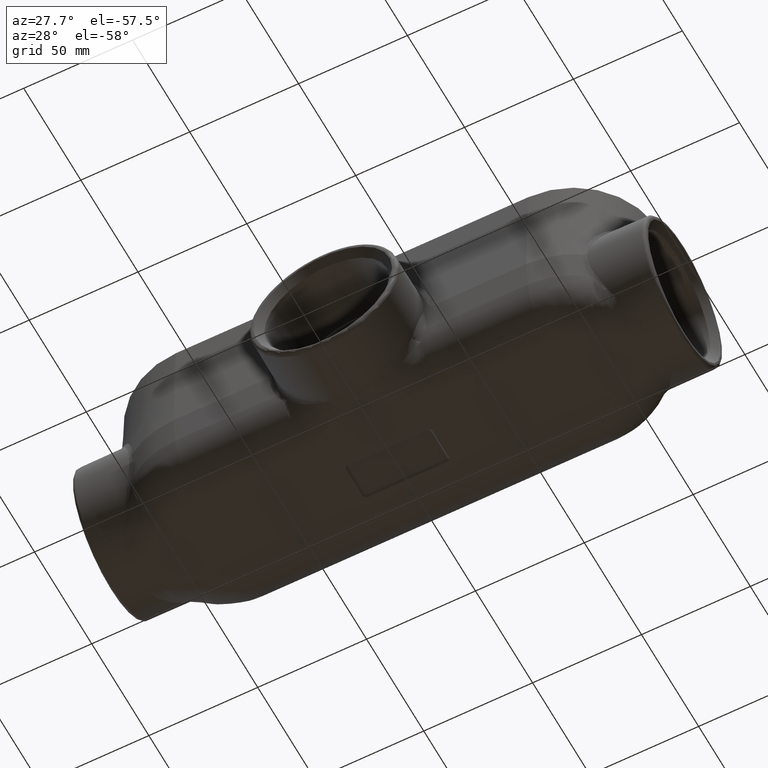
[diagram: clean part render]
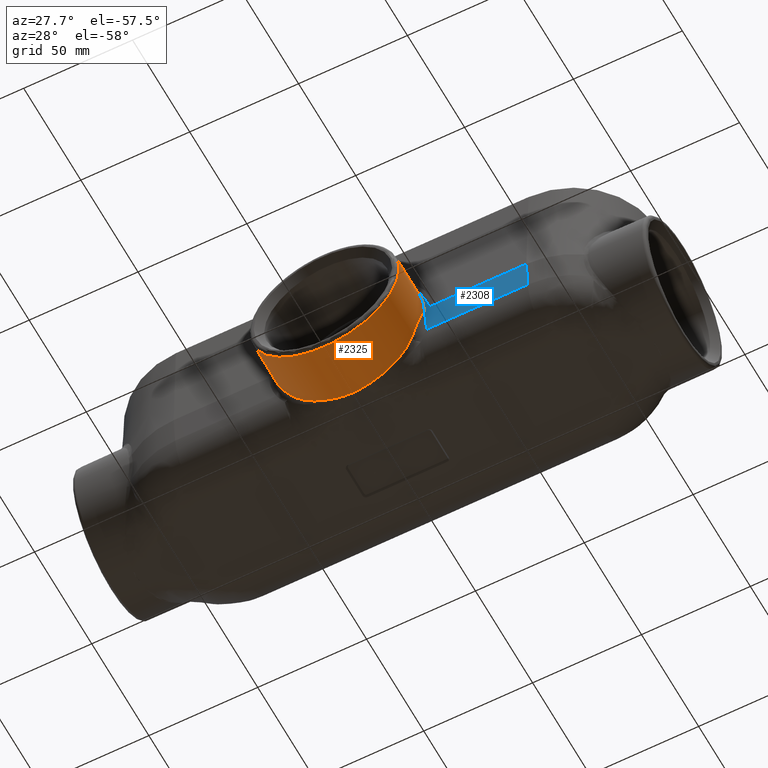
[diagram: same view with the hole feature highlighted: cylindrical wall and planar end face, labeled with their STEP entity ids]
A machine part, auxiliary view. The highlighted faces form one hole feature of diameter 68.2626 mm: the cylindrical wall (entity #2325, orange) and its adjacent planar end face (entity #2308, blue) — they share a circular edge in the B-rep.
Wall:
#62=CYLINDRICAL_SURFACE('',#2567,1.34375);
#128=ELLIPSE('',#2510,1.34888290669887,1.34375);
#131=ELLIPSE('',#2569,1.3447284909267,1.34375);
#132=ELLIPSE('',#2570,1.34988001280164,1.34375);
#162=FACE_BOUND('',#377,.T.);
#215=FACE_OUTER_BOUND('',#376,.T.);
#376=EDGE_LOOP('',(#1750));
#377=EDGE_LOOP('',(#1751,#1752,#1753,#1754,#1755,#1756,#1757,#1758));
#560=B_SPLINE_CURVE_WITH_KNOTS('',3,(#6206,#6207,#6208,#6209,#6210,#6211,
#6212,#6213,#6214,#6215,#6216,#6217,#6218,#6219,#6220,#6221,#6222,#6223,
#6224,#6225,#6226,#6227,#6228,#6229,#6230,#6231,#6232,#6233,#6234,#6235,
#6236,#6237,#6238,#6239,#6240,#6241,#6242,#6243,#6244,#6245,#6246,#6247,
#6248,#6249,#6250,#6251,#6252,#6253,#6254,#6255,#6256,#6257,#6258,#6259,
#6260),.UNSPECIFIED.,.F.,.F.,(4,3,3,3,3,3,3,3,3,3,3,3,3,3,3,3,3,3,4),(0.,
0.0312500000000001,0.0625000000000003,0.125,0.233533409718275,0.25,0.347367619025291,
0.375,0.4375,0.5,0.594659950686659,0.625,0.68280464052731,0.6875,0.749999999999999,
0.844536304348376,0.875,0.954119808201592,1.),.UNSPECIFIED.);
#561=B_SPLINE_CURVE_WITH_KNOTS('',3,(#6261,#6262,#6263,#6264,#6265,#6266,
#6267,#6268,#6269,#6270,#6271,#6272,#6273,#6274,#6275,#6276,#6277,#6278,
#6279,#6280,#6281,#6282,#6283,#6284,#6285,#6286,#6287,#6288,#6289,#6290,
#6291,#6292,#6293,#6294,#6295,#6296,#6297,#6298,#6299,#6300,#6301,#6302,
#6303,#6304,#6305,#6306,#6307,#6308,#6309,#6310,#6311,#6312),
 .UNSPECIFIED.,.F.,.F.,(4,3,3,3,3,3,3,3,3,3,3,3,3,3,3,3,3,4),(0.,0.12618563218385,
0.249999999999997,0.252066230735854,0.314887261897154,0.374999999999995,
0.37761548038576,0.437499999999994,0.440285716294809,0.499999999999993,
0.503001374161011,0.628543282519174,0.749999999999996,0.754427133870119,
0.8174317185789,0.874999999999998,0.880374945876926,1.),.UNSPECIFIED.);
#562=B_SPLINE_CURVE_WITH_KNOTS('',3,(#6320,#6321,#6322,#6323,#6324,#6325,
#6326,#6327,#6328,#6329,#6330,#6331,#6332),.UNSPECIFIED.,.F.,.F.,(4,3,3,
3,4),(0.,0.411724005462899,0.5,0.94958389478215,1.),.UNSPECIFIED.);
#563=B_SPLINE_CURVE_WITH_KNOTS('',3,(#6333,#6334,#6335,#6336,#6337,#6338,
#6339,#6340,#6341,#6342,#6343,#6344,#6345,#6346,#6347,#6348,#6349,#6350,
#6351,#6352,#6353,#6354,#6355,#6356,#6357,#6358,#6359,#6360),
 .UNSPECIFIED.,.F.,.F.,(4,2,2,2,2,2,2,2,2,2,2,2,2,4),(0.,0.0312499999999996,
0.0624999999999993,0.125,0.25,0.312500000000001,0.375000000000001,0.437500000000001,
0.500000000000001,0.625000000000001,0.750000000000001,0.875000000000001,
0.9375,1.),.UNSPECIFIED.);
#650=LINE('',#6314,#774);
#774=VECTOR('',#3008,0.393700787401575);
#900=CIRCLE('',#2568,1.34375);
#978=VERTEX_POINT('',#3547);
#1049=VERTEX_POINT('',#3969);
#1050=VERTEX_POINT('',#3984);
#1116=VERTEX_POINT('',#6203);
#1117=VERTEX_POINT('',#6205);
#1118=VERTEX_POINT('',#6313);
#1119=VERTEX_POINT('',#6315);
#1120=VERTEX_POINT('',#6317);
#1121=VERTEX_POINT('',#6319);
#1282=EDGE_CURVE('',#1050,#1049,#128,.T.);
#1369=EDGE_CURVE('',#1116,#1116,#900,.F.);
#1370=EDGE_CURVE('',#978,#1117,#560,.F.);
#1371=EDGE_CURVE('',#1117,#1050,#561,.T.);
#1372=EDGE_CURVE('',#1049,#1118,#650,.T.);
#1373=EDGE_CURVE('',#1118,#1119,#131,.T.);
#1374=EDGE_CURVE('',#1119,#1120,#132,.F.);
#1375=EDGE_CURVE('',#1120,#1121,#562,.T.);
#1376=EDGE_CURVE('',#1121,#978,#563,.T.);
#1750=ORIENTED_EDGE('',*,*,#1369,.T.);
#1751=ORIENTED_EDGE('',*,*,#1370,.T.);
#1752=ORIENTED_EDGE('',*,*,#1371,.T.);
#1753=ORIENTED_EDGE('',*,*,#1282,.T.);
#1754=ORIENTED_EDGE('',*,*,#1372,.T.);
#1755=ORIENTED_EDGE('',*,*,#1373,.T.);
#1756=ORIENTED_EDGE('',*,*,#1374,.T.);
#1757=ORIENTED_EDGE('',*,*,#1375,.T.);
#1758=ORIENTED_EDGE('',*,*,#1376,.T.);
#2325=ADVANCED_FACE('',(#215,#162),#62,.T.);
#2510=AXIS2_PLACEMENT_3D('',#3985,#2865,#2866);
#2567=AXIS2_PLACEMENT_3D('',#6202,#3004,#3005);
#2568=AXIS2_PLACEMENT_3D('',#6204,#3006,#3007);
#2569=AXIS2_PLACEMENT_3D('',#6316,#3009,#3010);
#2570=AXIS2_PLACEMENT_3D('',#6318,#3011,#3012);
#2865=DIRECTION('center_axis',(3.06454760320682E-12,-0.996194698091746,
-0.0871557427476582));
#2866=DIRECTION('ref_axis',(3.50144984692255E-11,0.0871557427476582,-0.996194698091746));
#3004=DIRECTION('center_axis',(-1.17145334231628E-15,1.,0.));
#3005=DIRECTION('ref_axis',(0.,0.,1.));
#3006=DIRECTION('center_axis',(1.17145334231628E-15,-1.,0.));
#3007=DIRECTION('ref_axis',(1.,1.17145334231628E-15,0.));
#3008=DIRECTION('',(-0.736922145658352,-0.0589153321019896,0.673405327333845));
#3009=DIRECTION('center_axis',(3.35986125615489E-12,-0.999272350564962,
0.038141439359003));
#3010=DIRECTION('ref_axis',(8.79946427139543E-11,0.038141439359003,0.999272350564962));
#3011=DIRECTION('center_axis',(-3.34703908041061E-12,0.995458846161507,
0.0951928862825407));
#3012=DIRECTION('ref_axis',(3.49885716841139E-11,0.0951928862825407,-0.995458846161507));
#3547=CARTESIAN_POINT('',(1.9375,-2.17430246952019,-3.4375));
#3969=CARTESIAN_POINT('',(2.8476944584743,-2.37835135052629,-1.10521061774841));
#3984=CARTESIAN_POINT('',(3.27998871132144,-2.28677284491163,-2.15195772685654));
#3985=CARTESIAN_POINT('Origin',(1.9375,-2.29186536113315,-2.09375));
#6202=CARTESIAN_POINT('Origin',(1.9375,-3.22375963888646,-2.09375));
#6203=CARTESIAN_POINT('',(3.28125,-3.16175963888645,-2.09375));
#6204=CARTESIAN_POINT('Origin',(1.9375,-3.16175963888646,-2.09375));
#6205=CARTESIAN_POINT('',(3.06122877783149,-2.3141579399722,-2.83056591756242));
#6206=CARTESIAN_POINT('Ctrl Pts',(3.06122877783149,-2.3141579399722,-2.83056591756242));
#6207=CARTESIAN_POINT('Ctrl Pts',(3.05388511961875,-2.30978191189631,-2.84176583856238));
#6208=CARTESIAN_POINT('Ctrl Pts',(3.04629032209819,-2.3060287378006,-2.85298206169752));
#6209=CARTESIAN_POINT('Ctrl Pts',(3.0384874379417,-2.3025403999897,-2.86413349151223));
#6210=CARTESIAN_POINT('Ctrl Pts',(3.0306845537852,-2.2990520621788,-2.87528492132695));
#6211=CARTESIAN_POINT('Ctrl Pts',(3.0226700325943,-2.29585640090192,-2.88637772058892));
#6212=CARTESIAN_POINT('Ctrl Pts',(3.01445596696609,-2.29284105113692,-2.89738543209352));
#6213=CARTESIAN_POINT('Ctrl Pts',(2.99802783570967,-2.28681035160692,-2.9194008551027));
#6214=CARTESIAN_POINT('Ctrl Pts',(2.98085837061632,-2.28151554115115,-2.94099357586269));
#6215=CARTESIAN_POINT('Ctrl Pts',(2.96311331361109,-2.27663756268638,-2.96195584739085));
#6216=CARTESIAN_POINT('Ctrl Pts',(2.93229840893234,-2.26816678452137,-2.99835755626112));
#6217=CARTESIAN_POINT('Ctrl Pts',(2.89963694079648,-2.26090972684459,-3.03301745569176));
#6218=CARTESIAN_POINT('Ctrl Pts',(2.86519291264847,-2.25430338514818,-3.06588678169371));
#6219=CARTESIAN_POINT('Ctrl Pts',(2.85996709600235,-2.25330107699018,-3.07087368596139));
#6220=CARTESIAN_POINT('Ctrl Pts',(2.85470017455916,-2.25231374745681,-3.07581930814195));
#6221=CARTESIAN_POINT('Ctrl Pts',(2.84939229798718,-2.25133943032598,-3.08072340357866));
#6222=CARTESIAN_POINT('Ctrl Pts',(2.81800660762558,-2.24557825344716,-3.10972151964134));
#6223=CARTESIAN_POINT('Ctrl Pts',(2.78518898802633,-2.24030597690503,-3.13727330078797));
#6224=CARTESIAN_POINT('Ctrl Pts',(2.75092125639678,-2.23538825089777,-3.16333399489796));
#6225=CARTESIAN_POINT('Ctrl Pts',(2.74119626748357,-2.23399262800053,-3.17072987286356));
#6226=CARTESIAN_POINT('Ctrl Pts',(2.73135433069218,-2.23262556033315,-3.17800538035312));
#6227=CARTESIAN_POINT('Ctrl Pts',(2.72139469759801,-2.23128397711847,-3.18515879856162));
#6228=CARTESIAN_POINT('Ctrl Pts',(2.69886760994111,-2.22824953173376,-3.20133867963812));
#6229=CARTESIAN_POINT('Ctrl Pts',(2.67567324047738,-2.22534225543908,-3.21693493100767));
#6230=CARTESIAN_POINT('Ctrl Pts',(2.65201941071155,-2.22256953298465,-3.23178606015645));
#6231=CARTESIAN_POINT('Ctrl Pts',(2.62836558094572,-2.21979681053022,-3.24663718930523));
#6232=CARTESIAN_POINT('Ctrl Pts',(2.60431226865769,-2.21716454658544,-3.26071194362149));
#6233=CARTESIAN_POINT('Ctrl Pts',(2.57986482058485,-2.21465443643873,-3.27401755431766));
#6234=CARTESIAN_POINT('Ctrl Pts',(2.54283771292102,-2.21085272599545,-3.29416968955533));
#6235=CARTESIAN_POINT('Ctrl Pts',(2.50490803972871,-2.2073293969197,-3.31255943824229));
#6236=CARTESIAN_POINT('Ctrl Pts',(2.46607262541782,-2.20404593122213,-3.32917504513989));
#6237=CARTESIAN_POINT('Ctrl Pts',(2.45362524532995,-2.20299352721748,-3.334500616609));
#6238=CARTESIAN_POINT('Ctrl Pts',(2.44108466322943,-2.2019657645325,-3.33964356044795));
#6239=CARTESIAN_POINT('Ctrl Pts',(2.42845041209292,-2.20096137489159,-3.34460241150417));
#6240=CARTESIAN_POINT('Ctrl Pts',(2.40437931261199,-2.19904778597344,-3.35405014178873));
#6241=CARTESIAN_POINT('Ctrl Pts',(2.37994210345153,-2.19721859770372,-3.36283503280058));
#6242=CARTESIAN_POINT('Ctrl Pts',(2.3553821221487,-2.19548449631944,-3.37087121370232));
#6243=CARTESIAN_POINT('Ctrl Pts',(2.35338716223186,-2.19534363860824,-3.37152397717904));
#6244=CARTESIAN_POINT('Ctrl Pts',(2.35139140144357,-2.19520340828027,-3.37217182762898));
#6245=CARTESIAN_POINT('Ctrl Pts',(2.34939497480667,-2.19506381106275,-3.37281473340054));
#6246=CARTESIAN_POINT('Ctrl Pts',(2.32282051005441,-2.19320563041739,-3.38137246171859));
#6247=CARTESIAN_POINT('Ctrl Pts',(2.29606033641171,-2.19145409322369,-3.38907681668337));
#6248=CARTESIAN_POINT('Ctrl Pts',(2.26911714327677,-2.18980039729282,-3.39593820943247));
#6249=CARTESIAN_POINT('Ctrl Pts',(2.22836338477562,-2.1872990484637,-3.40631662084339));
#6250=CARTESIAN_POINT('Ctrl Pts',(2.18719170272601,-2.18502068865859,-3.41476869341384));
#6251=CARTESIAN_POINT('Ctrl Pts',(2.14560123522607,-2.1829451626391,-3.42128830016214));
#6252=CARTESIAN_POINT('Ctrl Pts',(2.13219898354445,-2.18227633817626,-3.42338920009807));
#6253=CARTESIAN_POINT('Ctrl Pts',(2.11875317675951,-2.18162857613158,-3.42528903295629));
#6254=CARTESIAN_POINT('Ctrl Pts',(2.10526367447439,-2.18100120207046,-3.42698644265631));
#6255=CARTESIAN_POINT('Ctrl Pts',(2.07022896149212,-2.17937179650017,-3.43139492715014));
#6256=CARTESIAN_POINT('Ctrl Pts',(2.0348367271723,-2.17788055579275,-3.43444121007604));
#6257=CARTESIAN_POINT('Ctrl Pts',(1.99933148878022,-2.17652481350827,-3.43607668508646));
#6258=CARTESIAN_POINT('Ctrl Pts',(1.97874262254933,-2.17573864228952,-3.43702506841632));
#6259=CARTESIAN_POINT('Ctrl Pts',(1.95811595847627,-2.17499803427293,-3.4375));
#6260=CARTESIAN_POINT('Ctrl Pts',(1.9375,-2.17430246952019,-3.4375));
#6261=CARTESIAN_POINT('Ctrl Pts',(3.06122877783149,-2.3141579399722,-2.83056591756242));
#6262=CARTESIAN_POINT('Ctrl Pts',(3.07759467085648,-2.32391024669586,-2.80560605373654));
#6263=CARTESIAN_POINT('Ctrl Pts',(3.09318887425895,-2.3325754124915,-2.78001202575646));
#6264=CARTESIAN_POINT('Ctrl Pts',(3.10799448362863,-2.34006957295285,-2.75375509566126));
#6265=CARTESIAN_POINT('Ctrl Pts',(3.12252186786814,-2.34742290410297,-2.72799158246038));
#6266=CARTESIAN_POINT('Ctrl Pts',(3.13629003550759,-2.35364887817192,-2.70158986785307));
#6267=CARTESIAN_POINT('Ctrl Pts',(3.14926801407607,-2.35863219622794,-2.67451018360899));
#6268=CARTESIAN_POINT('Ctrl Pts',(3.1494845923188,-2.3587153585064,-2.6740582742152));
#6269=CARTESIAN_POINT('Ctrl Pts',(3.14970094976637,-2.35879817351636,-2.67360617745969));
#6270=CARTESIAN_POINT('Ctrl Pts',(3.1499170863094,-2.35888064075888,-2.67315389308958));
#6271=CARTESIAN_POINT('Ctrl Pts',(3.15648843396657,-2.36138794893207,-2.65940278097245));
#6272=CARTESIAN_POINT('Ctrl Pts',(3.16285560392567,-2.36357383291906,-2.64547827336303));
#6273=CARTESIAN_POINT('Ctrl Pts',(3.16901481752705,-2.36542022514907,-2.63137004865975));
#6274=CARTESIAN_POINT('Ctrl Pts',(3.17490849974293,-2.36718701710562,-2.61787004713149));
#6275=CARTESIAN_POINT('Ctrl Pts',(3.1806117732098,-2.36864296383259,-2.60420182447925));
#6276=CARTESIAN_POINT('Ctrl Pts',(3.18611609669257,-2.36976614521579,-2.59036066542309));
#6277=CARTESIAN_POINT('Ctrl Pts',(3.18635558753196,-2.36981501437348,-2.58975844231414));
#6278=CARTESIAN_POINT('Ctrl Pts',(3.18659471026496,-2.3698632525094,-2.58915587020912));
#6279=CARTESIAN_POINT('Ctrl Pts',(3.18683346206463,-2.36991085721016,-2.58855295378013));
#6280=CARTESIAN_POINT('Ctrl Pts',(3.19229996715025,-2.37100082318814,-2.57474846841154));
#6281=CARTESIAN_POINT('Ctrl Pts',(3.19757136426078,-2.37175774377912,-2.5607632134039));
#6282=CARTESIAN_POINT('Ctrl Pts',(3.20257332491406,-2.37216224381504,-2.54679877953846));
#6283=CARTESIAN_POINT('Ctrl Pts',(3.2028060068056,-2.37218106040317,-2.54614918008909));
#6284=CARTESIAN_POINT('Ctrl Pts',(3.20303815009673,-2.37219912285823,-2.54549950614383));
#6285=CARTESIAN_POINT('Ctrl Pts',(3.20326974843681,-2.37221642903525,-2.54484977438149));
#6286=CARTESIAN_POINT('Ctrl Pts',(3.20823426295359,-2.37258740219074,-2.53092220147651));
#6287=CARTESIAN_POINT('Ctrl Pts',(3.21294807793565,-2.37261045901993,-2.51696803598856));
#6288=CARTESIAN_POINT('Ctrl Pts',(3.21741726723186,-2.37228212153228,-2.50298842934004));
#6289=CARTESIAN_POINT('Ctrl Pts',(3.21764189873444,-2.37226561855191,-2.50228578287805));
#6290=CARTESIAN_POINT('Ctrl Pts',(3.21786591845671,-2.3722482270621,-2.50158305508043));
#6291=CARTESIAN_POINT('Ctrl Pts',(3.21808932818689,-2.3722299468866,-2.50088024333714));
#6292=CARTESIAN_POINT('Ctrl Pts',(3.22743414238446,-2.37146532108727,-2.47148293306022));
#6293=CARTESIAN_POINT('Ctrl Pts',(3.23571107133668,-2.36914484768759,-2.44193882722077));
#6294=CARTESIAN_POINT('Ctrl Pts',(3.24293638961828,-2.36521875747544,-2.41234048223344));
#6295=CARTESIAN_POINT('Ctrl Pts',(3.24992659275215,-2.36142042402698,-2.38370528087287));
#6296=CARTESIAN_POINT('Ctrl Pts',(3.25593261905823,-2.35611914964186,-2.35501911722033));
#6297=CARTESIAN_POINT('Ctrl Pts',(3.26098827267396,-2.34920036593404,-2.32622273760643));
#6298=CARTESIAN_POINT('Ctrl Pts',(3.26117255276832,-2.34894817418764,-2.3251731009114));
#6299=CARTESIAN_POINT('Ctrl Pts',(3.26135559583045,-2.34869379073042,-2.3241231753734));
#6300=CARTESIAN_POINT('Ctrl Pts',(3.26153740251246,-2.34843720870792,-2.32307295861124));
#6301=CARTESIAN_POINT('Ctrl Pts',(3.2641247772865,-2.34478567156313,-2.3081268393171));
#6302=CARTESIAN_POINT('Ctrl Pts',(3.26646169773176,-2.34068873422647,-2.29312163616741));
#6303=CARTESIAN_POINT('Ctrl Pts',(3.26852677172135,-2.33617773320197,-2.27822708655137));
#6304=CARTESIAN_POINT('Ctrl Pts',(3.27041366235221,-2.332055960514,-2.26461770196611));
#6305=CARTESIAN_POINT('Ctrl Pts',(3.27207358921988,-2.32758852401206,-2.25110078641867));
#6306=CARTESIAN_POINT('Ctrl Pts',(3.27351728468906,-2.32278889822588,-2.23770105910826));
#6307=CARTESIAN_POINT('Ctrl Pts',(3.27365207740508,-2.3223407742209,-2.236449974183));
#6308=CARTESIAN_POINT('Ctrl Pts',(3.27378499601704,-2.32188971891125,-2.23519981344905));
#6309=CARTESIAN_POINT('Ctrl Pts',(3.2739160486635,-2.32143574189371,-2.23395059691267));
#6310=CARTESIAN_POINT('Ctrl Pts',(3.27683276267032,-2.31133200754228,-2.20614797355648));
#6311=CARTESIAN_POINT('Ctrl Pts',(3.27882446607749,-2.29978017218533,-2.17881344344026));
#6312=CARTESIAN_POINT('Ctrl Pts',(3.27998871765521,-2.2867728449233,-2.15195772713218));
#6313=CARTESIAN_POINT('',(2.84021857967472,-2.37894903010974,-1.09837910007874));
#6314=CARTESIAN_POINT('',(2.8476944584743,-2.37835135052629,-1.10521061774841));
#6315=CARTESIAN_POINT('',(0.593753565624418,-2.41705603257365,-2.09674923406818));
#6316=CARTESIAN_POINT('Origin',(1.9375,-2.4169415541705,-2.09375));
#6317=CARTESIAN_POINT('',(0.69371722982847,-2.36870739035087,-2.6023446157053));
#6318=CARTESIAN_POINT('Origin',(1.9375,-2.41734284082607,-2.09375));
#6319=CARTESIAN_POINT('',(0.813771222168913,-2.31415793997952,-2.83056591756303));
#6320=CARTESIAN_POINT('Ctrl Pts',(0.69371722982847,-2.36870739035087,-2.6023446157053));
#6321=CARTESIAN_POINT('Ctrl Pts',(0.707516903728242,-2.36548021334426,-2.63609211538483));
#6322=CARTESIAN_POINT('Ctrl Pts',(0.722475835028014,-2.36030536209958,-2.66876510887888));
#6323=CARTESIAN_POINT('Ctrl Pts',(0.738515689873242,-2.35343598495713,-2.70046301829601));
#6324=CARTESIAN_POINT('Ctrl Pts',(0.741954726994969,-2.35196315099299,-2.70725923236518));
#6325=CARTESIAN_POINT('Ctrl Pts',(0.745443644229664,-2.35041241996817,-2.71401060417646));
#6326=CARTESIAN_POINT('Ctrl Pts',(0.748981974376567,-2.3487862869621,-2.72071807356369));
#6327=CARTESIAN_POINT('Ctrl Pts',(0.767002459524445,-2.34050449739816,-2.75487877860086));
#6328=CARTESIAN_POINT('Ctrl Pts',(0.786299449534828,-2.33026214329392,-2.7878996022776));
#6329=CARTESIAN_POINT('Ctrl Pts',(0.806821055288287,-2.3182613003445,-2.81985549267004));
#6330=CARTESIAN_POINT('Ctrl Pts',(0.809122337533744,-2.31691553202881,-2.82343900967555));
#6331=CARTESIAN_POINT('Ctrl Pts',(0.811439071395945,-2.31554765025255,-2.8270091201658));
#6332=CARTESIAN_POINT('Ctrl Pts',(0.813771222168913,-2.31415793997952,-2.83056591756302));
#6333=CARTESIAN_POINT('Ctrl Pts',(0.813771222168913,-2.31415793997952,-2.83056591756303));
#6334=CARTESIAN_POINT('Ctrl Pts',(0.821110375081262,-2.30978459657659,-2.84175896746318));
#6335=CARTESIAN_POINT('Ctrl Pts',(0.828692322988653,-2.30603771861928,-2.8529561491047));
#6336=CARTESIAN_POINT('Ctrl Pts',(0.844260763771363,-2.29907529185583,-2.87520787718079));
#6337=CARTESIAN_POINT('Ctrl Pts',(0.852250578055385,-2.29588787580659,-2.88626818762762));
#6338=CARTESIAN_POINT('Ctrl Pts',(0.876802079632425,-2.28686817272375,-2.91917914682889));
#6339=CARTESIAN_POINT('Ctrl Pts',(0.893981187607796,-2.28156121483032,-2.94080064293765));
#6340=CARTESIAN_POINT('Ctrl Pts',(0.94749068398309,-2.26684717019205,-3.00402170711268));
#6341=CARTESIAN_POINT('Ctrl Pts',(0.985666044665216,-2.25865751392505,-3.04386953104288));
#6342=CARTESIAN_POINT('Ctrl Pts',(1.04655804493948,-2.24750075419242,-3.1000547401445));
#6343=CARTESIAN_POINT('Ctrl Pts',(1.06746299461994,-2.24398820341906,-3.11818624825701));
#6344=CARTESIAN_POINT('Ctrl Pts',(1.11049527714319,-2.23728722600512,-3.1532296863773));
#6345=CARTESIAN_POINT('Ctrl Pts',(1.13266152418544,-2.23409436751423,-3.17016884503691));
#6346=CARTESIAN_POINT('Ctrl Pts',(1.17803567884626,-2.22800479715089,-3.20264875416855));
#6347=CARTESIAN_POINT('Ctrl Pts',(1.20122069459307,-2.22511049475472,-3.21817748295423));
#6348=CARTESIAN_POINT('Ctrl Pts',(1.24858627152099,-2.21957859083755,-3.24780470178256));
#6349=CARTESIAN_POINT('Ctrl Pts',(1.27270220004713,-2.21694937617406,-3.26185869341139));
#6350=CARTESIAN_POINT('Ctrl Pts',(1.34588559632873,-2.20946142647923,-3.30153158110251));
#6351=CARTESIAN_POINT('Ctrl Pts',(1.39595735761809,-2.20497849305808,-3.3247796567745));
#6352=CARTESIAN_POINT('Ctrl Pts',(1.49860253646844,-2.1968282027348,-3.36499799542886));
#6353=CARTESIAN_POINT('Ctrl Pts',(1.55117601770732,-2.19316281001367,-3.38196849877917));
#6354=CARTESIAN_POINT('Ctrl Pts',(1.65887844456267,-2.1865430897698,-3.40947153160804));
#6355=CARTESIAN_POINT('Ctrl Pts',(1.7142023041152,-2.18358398944405,-3.41999855166926));
#6356=CARTESIAN_POINT('Ctrl Pts',(1.79750547848762,-2.17970970875265,-3.43048065771291));
#6357=CARTESIAN_POINT('Ctrl Pts',(1.8253849622138,-2.17850850968925,-3.43310839088265));
#6358=CARTESIAN_POINT('Ctrl Pts',(1.88136837121462,-2.17627644674228,-3.43662003137886));
#6359=CARTESIAN_POINT('Ctrl Pts',(1.90949360250019,-2.1752473819661,-3.4375));
#6360=CARTESIAN_POINT('Ctrl Pts',(1.9375,-2.17430246952019,-3.4375));
End face:
#128=ELLIPSE('',#2510,1.34888290669887,1.34375);
#198=FACE_OUTER_BOUND('',#351,.T.);
#351=EDGE_LOOP('',(#1634,#1635,#1636,#1637,#1638,#1639));
#538=B_SPLINE_CURVE_WITH_KNOTS('',3,(#3970,#3971,#3972,#3973,#3974,#3975,
#3976,#3977,#3978,#3979,#3980,#3981,#3982,#3983),.UNSPECIFIED.,.F.,.F.,
(4,2,2,2,2,2,4),(0.,0.0140159001688774,0.0372206397671367,0.0757535014469924,
0.172601531612846,0.707685113725583,1.29314388767535),.UNSPECIFIED.);
#539=B_SPLINE_CURVE_WITH_KNOTS('',3,(#3987,#3988,#3989,#3990,#3991,#3992,
#3993,#3994,#3995,#3996),.UNSPECIFIED.,.F.,.F.,(4,2,2,2,4),(0.,0.250000000000001,
0.500000000000002,0.750000000000001,1.),.UNSPECIFIED.);
#625=LINE('',#3998,#749);
#626=LINE('',#4000,#750);
#627=LINE('',#4001,#751);
#749=VECTOR('',#2867,1.82801650702708);
#750=VECTOR('',#2868,0.547093129433635);
#751=VECTOR('',#2869,1.71875647860944);
#1048=VERTEX_POINT('',#3968);
#1049=VERTEX_POINT('',#3969);
#1050=VERTEX_POINT('',#3984);
#1051=VERTEX_POINT('',#3986);
#1052=VERTEX_POINT('',#3997);
#1053=VERTEX_POINT('',#3999);
#1281=EDGE_CURVE('',#1048,#1049,#538,.T.);
#1282=EDGE_CURVE('',#1050,#1049,#128,.T.);
#1283=EDGE_CURVE('',#1050,#1051,#539,.T.);
#1284=EDGE_CURVE('',#1051,#1052,#625,.T.);
#1285=EDGE_CURVE('',#1052,#1053,#626,.T.);
#1286=EDGE_CURVE('',#1048,#1053,#627,.F.);
#1634=ORIENTED_EDGE('',*,*,#1281,.T.);
#1635=ORIENTED_EDGE('',*,*,#1282,.F.);
#1636=ORIENTED_EDGE('',*,*,#1283,.T.);
#1637=ORIENTED_EDGE('',*,*,#1284,.T.);
#1638=ORIENTED_EDGE('',*,*,#1285,.T.);
#1639=ORIENTED_EDGE('',*,*,#1286,.F.);
#2257=PLANE('',#2509);
#2308=ADVANCED_FACE('',(#198),#2257,.T.);
#2509=AXIS2_PLACEMENT_3D('',#3967,#2863,#2864);
#2510=AXIS2_PLACEMENT_3D('',#3985,#2865,#2866);
#2863=DIRECTION('center_axis',(3.06454760320682E-12,-0.996194698091746,
-0.0871557427476582));
#2864=DIRECTION('ref_axis',(0.,0.0871557427476582,-0.996194698091746));
#2865=DIRECTION('center_axis',(3.06454760320682E-12,-0.996194698091746,
-0.0871557427476582));
#2866=DIRECTION('ref_axis',(3.50144984692255E-11,0.0871557427476582,-0.996194698091746));
#2867=DIRECTION('',(1.,3.0762841286983E-12,0.));
#2868=DIRECTION('',(2.67166204781856E-13,-0.0871557427476581,0.996194698091745));
#2869=DIRECTION('',(-1.,-3.07653163895712E-12,0.));
#3967=CARTESIAN_POINT('Origin',(1.93750000000503,-2.29186536113315,-2.09375));
#3968=CARTESIAN_POINT('',(3.40624352139094,-2.2918653610739,-2.09374999843252));
#3969=CARTESIAN_POINT('',(2.8476944584743,-2.37835135052629,-1.10521061774841));
#3970=CARTESIAN_POINT('Ctrl Pts',(3.40624281705967,-2.29186536112863,-2.09375));
#3971=CARTESIAN_POINT('Ctrl Pts',(3.40440346008213,-2.29186536112863,-2.09375000000008));
#3972=CARTESIAN_POINT('Ctrl Pts',(3.40261477760894,-2.2918943925668,-2.09341816911391));
#3973=CARTESIAN_POINT('Ctrl Pts',(3.39800656064979,-2.29203566052896,-2.09180346891793));
#3974=CARTESIAN_POINT('Ctrl Pts',(3.39539356618727,-2.29218656939723,-2.09007857269029));
#3975=CARTESIAN_POINT('Ctrl Pts',(3.3892601941062,-2.29264700033194,-2.08481582302494));
#3976=CARTESIAN_POINT('Ctrl Pts',(3.38576210214422,-2.29303402897178,-2.08039206542901));
#3977=CARTESIAN_POINT('Ctrl Pts',(3.37471964480446,-2.29450677771117,-2.06355847030937));
#3978=CARTESIAN_POINT('Ctrl Pts',(3.36751856378015,-2.29597319840552,-2.04679720507533));
#3979=CARTESIAN_POINT('Ctrl Pts',(3.32637894353505,-2.30549447872083,-1.93796847308351));
#3980=CARTESIAN_POINT('Ctrl Pts',(3.28729122231397,-2.32084458343648,-1.76251597333494));
#3981=CARTESIAN_POINT('Ctrl Pts',(3.07736463576048,-2.35768842893906,-1.34138889221293));
#3982=CARTESIAN_POINT('Ctrl Pts',(2.94967437671228,-2.37014701356733,-1.1989866182952));
#3983=CARTESIAN_POINT('Ctrl Pts',(2.8476944584743,-2.37835135052629,-1.10521061774841));
#3984=CARTESIAN_POINT('',(3.27998871132144,-2.28677284491163,-2.15195772685654));
#3985=CARTESIAN_POINT('Origin',(1.9375,-2.29186536113315,-2.09375));
#3986=CARTESIAN_POINT('',(3.29698349297967,-2.24418322944634,-2.63876129033155));
#3987=CARTESIAN_POINT('Ctrl Pts',(3.27998870500498,-2.28677284492333,-2.15195772658375));
#3988=CARTESIAN_POINT('Ctrl Pts',(3.2782225096059,-2.28320898574991,-2.19269282333569));
#3989=CARTESIAN_POINT('Ctrl Pts',(3.27981493660902,-2.27965896648561,-2.23326972920241));
#3990=CARTESIAN_POINT('Ctrl Pts',(3.28484082757213,-2.27256651433651,-2.31433682822123));
#3991=CARTESIAN_POINT('Ctrl Pts',(3.28833752166051,-2.26902434200474,-2.3548240432386));
#3992=CARTESIAN_POINT('Ctrl Pts',(3.29439782444865,-2.26193615236686,-2.43584242153128));
#3993=CARTESIAN_POINT('Ctrl Pts',(3.29697463310093,-2.25839066878261,-2.47636748433773));
#3994=CARTESIAN_POINT('Ctrl Pts',(3.29934873919619,-2.25129203498512,-2.55750523992109));
#3995=CARTESIAN_POINT('Ctrl Pts',(3.29913254937061,-2.24773072479909,-2.59821120161385));
#3996=CARTESIAN_POINT('Ctrl Pts',(3.29698349297781,-2.24418305308104,-2.6387612749042));
#3997=CARTESIAN_POINT('',(5.12500000000488,-2.24418305307542,-2.6387612749042));
#3998=CARTESIAN_POINT('',(3.29698349297781,-2.24418305308104,-2.6387612749042));
#3999=CARTESIAN_POINT('',(5.12500000000503,-2.29186536112335,-2.09374999999999));
#4000=CARTESIAN_POINT('',(5.12500000000488,-2.24418305307542,-2.6387612749042));
#4001=CARTESIAN_POINT('',(5.12500000000503,-2.29186536112335,-2.09375));